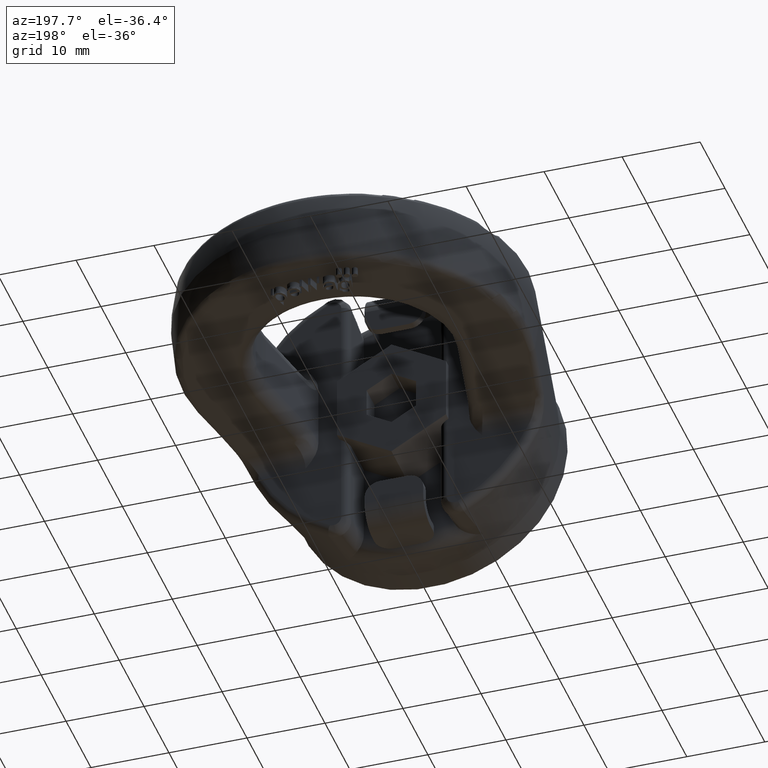
[diagram: clean part render]
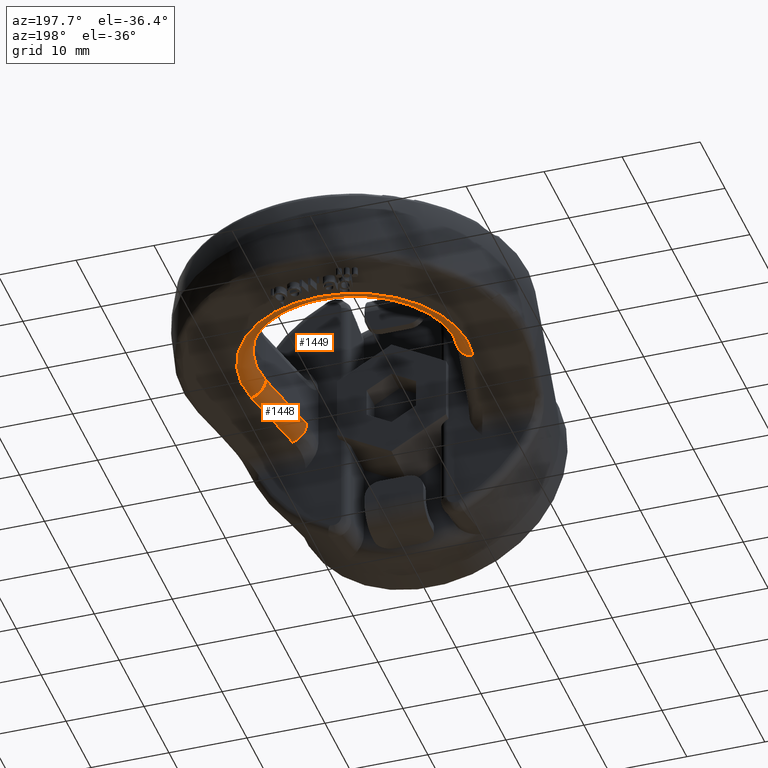
[diagram: same view with one multi-face feature highlighted, each face labeled with its STEP entity id]
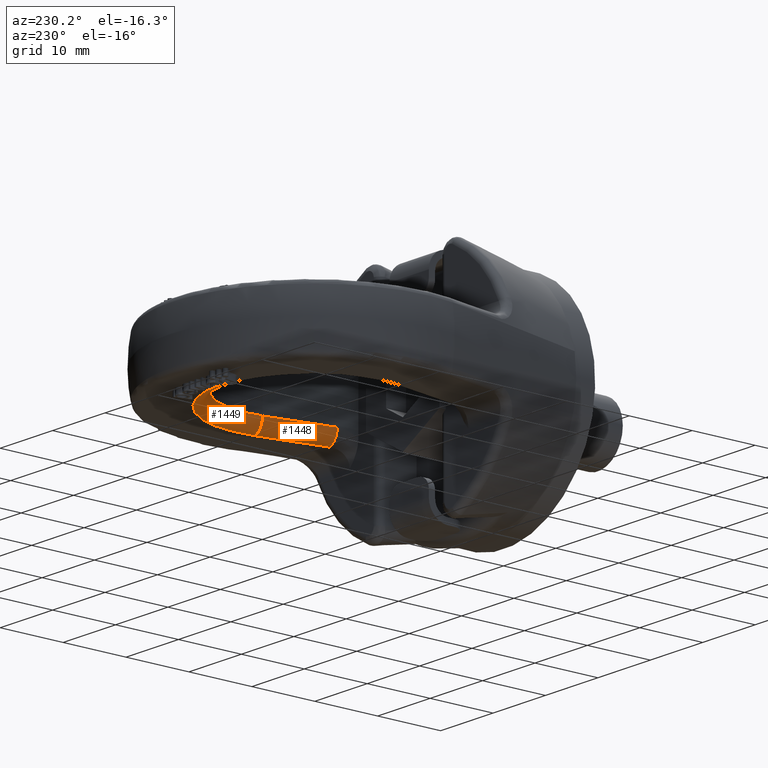
[diagram: same view with one multi-face feature highlighted, each face labeled with its STEP entity id]
A machine part, auxiliary view. The highlighted faces form ONE feature: a constant-radius fillet chain: 2 tangent blend faces with common blend radius 2 mm. The faces share edges in the B-rep.
A second angle (auxiliary view) of the same feature is appended — it is thin or edge-on in the first view.
Their STEP definitions:
[1] entity #1449 (Torus):
#1023=TOROIDAL_SURFACE('',#5284,14.5,2.);
#1217=FACE_OUTER_BOUND('',#1980,.T.);
#1449=ADVANCED_FACE('',(#1217),#1023,.T.);
#1688=CIRCLE('',#5148,12.5);
#1712=CIRCLE('',#5247,14.5);
#1726=CIRCLE('',#5281,2.);
#1727=CIRCLE('',#5283,2.);
#1980=EDGE_LOOP('',(#3437,#3438,#3439,#3440));
#3437=ORIENTED_EDGE('',*,*,#4659,.F.);
#3438=ORIENTED_EDGE('',*,*,#4398,.F.);
#3439=ORIENTED_EDGE('',*,*,#4660,.T.);
#3440=ORIENTED_EDGE('',*,*,#4600,.F.);
#4003=VERTEX_POINT('',#6896);
#4006=VERTEX_POINT('',#6901);
#4117=VERTEX_POINT('',#8267);
#4118=VERTEX_POINT('',#8268);
#4398=EDGE_CURVE('',#4006,#4003,#1688,.T.);
#4600=EDGE_CURVE('',#4117,#4118,#1712,.T.);
#4659=EDGE_CURVE('',#4003,#4117,#1726,.T.);
#4660=EDGE_CURVE('',#4006,#4118,#1727,.T.);
#5148=AXIS2_PLACEMENT_3D('',#6902,#5511,#5512);
#5247=AXIS2_PLACEMENT_3D('',#8266,#5828,#5829);
#5281=AXIS2_PLACEMENT_3D('',#8723,#5917,#5918);
#5283=AXIS2_PLACEMENT_3D('',#8725,#5921,#5922);
#5284=AXIS2_PLACEMENT_3D('',#8726,#5923,#5924);
#5511=DIRECTION('',(2.34291072916505E-15,1.0842021724855E-16,-1.));
#5512=DIRECTION('',(-2.46519032881566E-31,1.,1.04083408558608E-16));
#5828=DIRECTION('',(-2.34291072916505E-15,-1.0842021724855E-16,1.));
#5829=DIRECTION('',(-2.12516407656523E-31,1.,1.19636101791504E-16));
#5917=DIRECTION('',(-0.193894894562374,-0.981022308544839,-4.54278428800512E-16));
#5918=DIRECTION('',(0.98102230854484,-0.193894894562374,2.38524477946811E-15));
#5921=DIRECTION('',(-0.193894894562376,0.981022308544839,-4.54278428800516E-16));
#5922=DIRECTION('',(-0.981022308544839,-0.193894894562376,-2.38524477946811E-15));
#5923=DIRECTION('',(-2.34291072916505E-15,-1.0842021724855E-16,1.));
#5924=DIRECTION('',(-2.80135264638143E-31,1.,1.05134756119807E-16));
#6896=CARTESIAN_POINT('',(12.2627788568105,28.0763138179703,-2.99999999999998));
#6901=CARTESIAN_POINT('',(-12.2627788568105,28.0763138179703,-3.00000000000005));
#6902=CARTESIAN_POINT('',(7.02873218749517E-15,30.5,-3.00000000000001));
#8266=CARTESIAN_POINT('',(1.17145536458252E-14,30.5,-5.));
#8267=CARTESIAN_POINT('',(14.2248234739002,27.6885240288456,-4.99999999999997));
#8268=CARTESIAN_POINT('',(-14.2248234739002,27.6885240288456,-5.00000000000004));
#8723=CARTESIAN_POINT('',(14.2248234739002,27.6885240288456,-2.99999999999997));
#8725=CARTESIAN_POINT('',(-14.2248234739002,27.6885240288456,-3.00000000000004));
#8726=CARTESIAN_POINT('',(7.02873218749516E-15,30.5,-3.00000000000001));
[2] entity #1448 (Cylinder):
#1072=CYLINDRICAL_SURFACE('',#5282,2.);
#1216=FACE_OUTER_BOUND('',#1979,.T.);
#1448=ADVANCED_FACE('',(#1216),#1072,.T.);
#1725=CIRCLE('',#5280,2.);
#1726=CIRCLE('',#5281,2.);
#1979=EDGE_LOOP('',(#3433,#3434,#3435,#3436));
#2154=LINE('',#6914,#2434);
#2245=LINE('',#8287,#2553);
#2434=VECTOR('',#5526,1.);
#2553=VECTOR('',#5835,1.);
#3433=ORIENTED_EDGE('',*,*,#4658,.F.);
#3434=ORIENTED_EDGE('',*,*,#4405,.F.);
#3435=ORIENTED_EDGE('',*,*,#4659,.T.);
#3436=ORIENTED_EDGE('',*,*,#4607,.F.);
#4003=VERTEX_POINT('',#6896);
#4010=VERTEX_POINT('',#6915);
#4117=VERTEX_POINT('',#8267);
#4124=VERTEX_POINT('',#8286);
#4405=EDGE_CURVE('',#4003,#4010,#2154,.T.);
#4607=EDGE_CURVE('',#4124,#4117,#2245,.T.);
#4658=EDGE_CURVE('',#4010,#4124,#1725,.T.);
#4659=EDGE_CURVE('',#4003,#4117,#1726,.T.);
#5280=AXIS2_PLACEMENT_3D('',#8704,#5915,#5916);
#5281=AXIS2_PLACEMENT_3D('',#8723,#5917,#5918);
#5282=AXIS2_PLACEMENT_3D('',#8724,#5919,#5920);
#5526=DIRECTION('',(-0.193894894562375,-0.981022308544839,-5.6064108061862E-16));
#5835=DIRECTION('',(0.193894894562375,0.981022308544839,5.6064108061862E-16));
#5915=DIRECTION('',(-0.193894894562376,-0.981022308544839,-4.54278428800516E-16));
#5916=DIRECTION('',(0.981022308544839,-0.193894894562376,2.38524477946811E-15));
#5917=DIRECTION('',(-0.193894894562374,-0.981022308544839,-4.54278428800512E-16));
#5918=DIRECTION('',(0.98102230854484,-0.193894894562374,2.38524477946811E-15));
#5919=DIRECTION('',(-0.193894894562375,-0.981022308544839,-5.6064108061862E-16));
#5920=DIRECTION('',(-0.981022308544839,0.193894894562376,-2.38524477946811E-15));
#6896=CARTESIAN_POINT('',(12.2627788568105,28.0763138179703,-2.99999999999998));
#6914=CARTESIAN_POINT('',(10.172415330179,17.5,-2.99999999999998));
#6915=CARTESIAN_POINT('',(10.2490603357205,17.8877897891247,-2.99999999999998));
#8267=CARTESIAN_POINT('',(14.2248234739002,27.6885240288456,-4.99999999999997));
#8286=CARTESIAN_POINT('',(12.2111049528102,17.5,-4.99999999999998));
#8287=CARTESIAN_POINT('',(14.2248234739002,27.6885240288456,-4.99999999999997));
#8704=CARTESIAN_POINT('',(12.2111049528101,17.5,-2.99999999999998));
#8723=CARTESIAN_POINT('',(14.2248234739002,27.6885240288456,-2.99999999999997));
#8724=CARTESIAN_POINT('',(18.715032672775,50.4069942808428,-2.99999999999996));